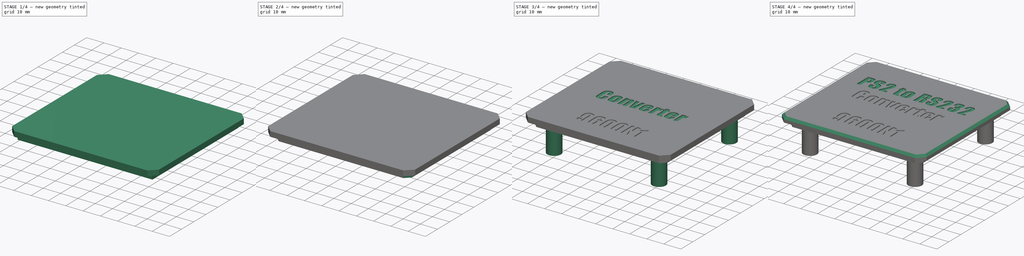
[diagram: build sequence overview — one tinted view per stage of 4, left to right]
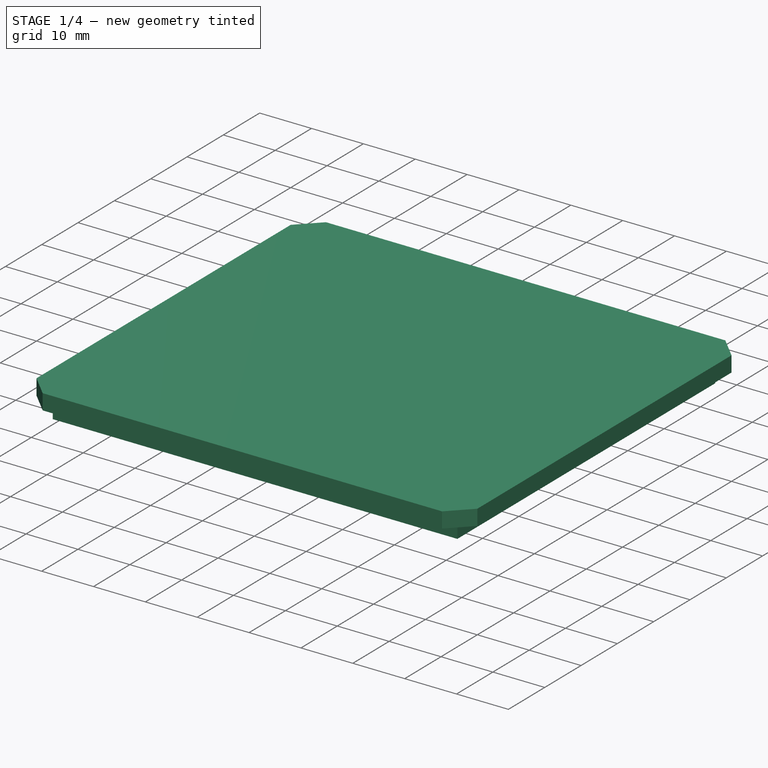
[diagram: stage 1 of 4 — iso view after this stage's code; geometry added in this stage tinted green]
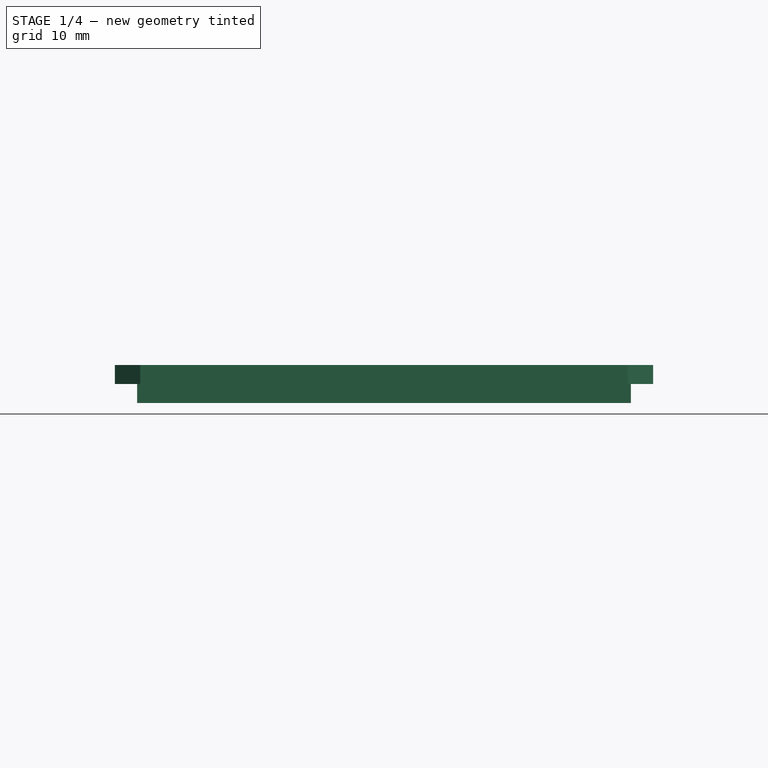
[diagram: stage 1 of 4 — front view after this stage's code; geometry added in this stage tinted green]
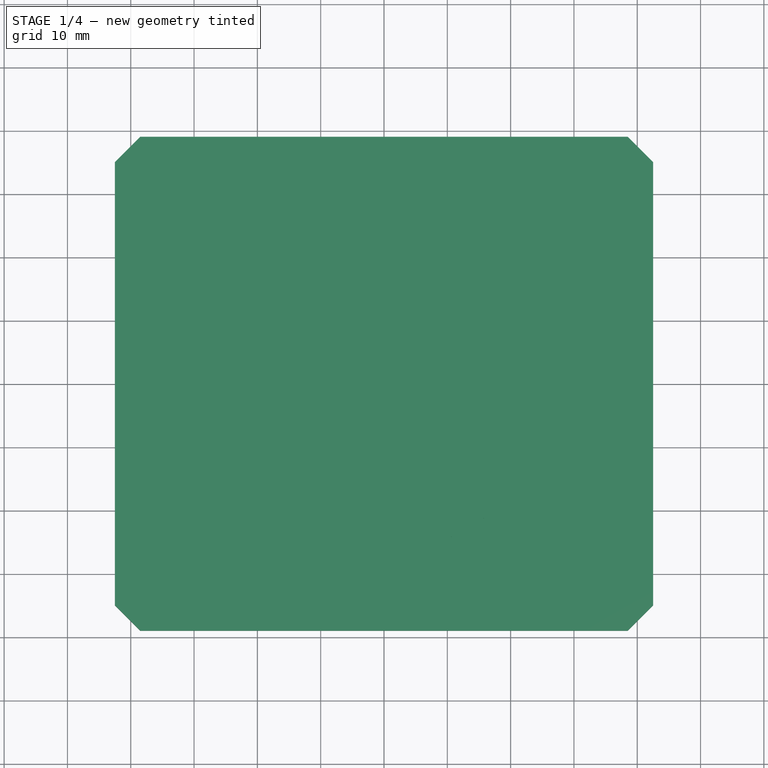
[diagram: stage 1 of 4 — top view after this stage's code; geometry added in this stage tinted green]
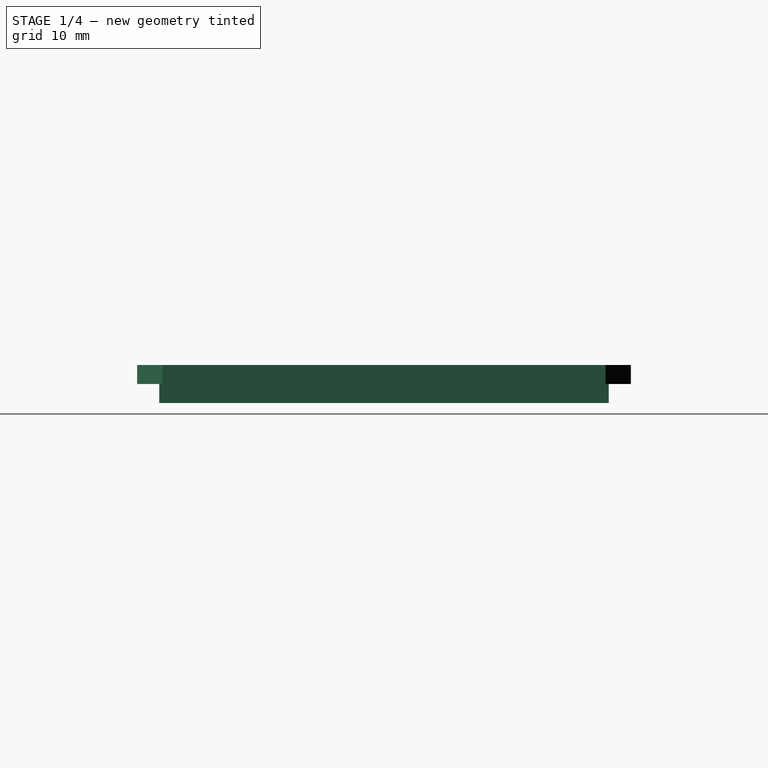
[diagram: stage 1 of 4 — right view after this stage's code; geometry added in this stage tinted green]
FCSTD DOCUMENT  (FreeCAD 0.17R13528 (Git))
Label: PS2 to RS232 lid
License: All rights reserved
LicenseURL: http://en.wikipedia.org/wiki/All_rights_reserved
objects: Sketcher::SketchObject×4, PartDesign::Pad×3, Part::Part2DObjectPython×3, Part::Extrusion×3, Part::Cut×3, PartDesign::Chamfer×2, PartDesign::Pocket×1, PartDesign::Body×1, Part::Chamfer×1
note: 25 computed .brp shape members not serialized (recipe doc carries the construction recipe); baked Part::Feature solids carry a one-line shape summary decoded from their .brp

FEATURE [Sketcher::SketchObject] Sketch
  MapMode = 5
  Support = -> [XY_Plane]
  sketch-geometry (8):
    g0: LineSegment StartX=38.5 StartY=39 StartZ=0 EndX=-38.5 EndY=39 EndZ=0
    g1: LineSegment StartX=-38.5 StartY=39 StartZ=0 EndX=-42.5 EndY=35 EndZ=0
    g2: LineSegment StartX=-42.5 StartY=35 StartZ=0 EndX=-42.5 EndY=-35 EndZ=0
    g3: LineSegment StartX=-42.5 StartY=-35 StartZ=0 EndX=-38.5 EndY=-39 EndZ=0
    g4: LineSegment StartX=-38.5 StartY=-39 StartZ=0 EndX=38.5 EndY=-39 EndZ=0
    g5: LineSegment StartX=38.5 StartY=-39 StartZ=0 EndX=42.5 EndY=-35 EndZ=0
    g6: LineSegment StartX=42.5 StartY=-35 StartZ=0 EndX=42.5 EndY=35 EndZ=0
    g7: LineSegment StartX=42.5 StartY=35 StartZ=0 EndX=38.5 EndY=39 EndZ=0
  constraints (23):
    c: Coincident(g0,g1)
    c: Coincident(g1,g2)
    c: Coincident(g2,g3)
    c: Coincident(g3,g4)
    c: Coincident(g4,g5)
    c: Coincident(g5,g6)
    c: Coincident(g6,g7)
    c: Coincident(g7,g0)
    c: Horizontal(g0)
    c: Horizontal(g4)
    c: Vertical(g6)
    c: Vertical(g2)
    c: Parallel(g3,g7)
    c: Parallel(g1,g5)
    c: Angle(g2,g1) = 2.35619
    c: Equal(g1,g3)
    c: Equal(g3,g5)
    c: Equal(g5,g7)
    c: DistanceX(g1,g0) = 4
    c: Symmetric(g2,g5,g-2)
    c: Symmetric(g0,g3,g-1)
    c: DistanceX(g1,g6) = 85
    c: DistanceY(g3,g0) = 78
FEATURE [PartDesign::Pad] Pad
  Length = 3
  Length2 = 100
  Profile = -> Sketch
  Type = 0
FEATURE [Sketcher::SketchObject] Sketch001
  ExternalGeometry = -> [Pad]
  MapMode = 5
  Placement = pos=(0,0,0) rot=(1,0,0;3.14159rad)
  Support = -> [Pad]
  sketch-geometry (4):
    g0: LineSegment StartX=-39 StartY=35.5 StartZ=0 EndX=39 EndY=35.5 EndZ=0
    g1: LineSegment StartX=39 StartY=35.5 StartZ=0 EndX=39 EndY=-35.5 EndZ=0
    g2: LineSegment StartX=39 StartY=-35.5 StartZ=0 EndX=-39 EndY=-35.5 EndZ=0
    g3: LineSegment StartX=-39 StartY=-35.5 StartZ=0 EndX=-39 EndY=35.5 EndZ=0
  constraints (12):
    c: Coincident(g0,g1)
    c: Coincident(g1,g2)
    c: Coincident(g2,g3)
    c: Coincident(g3,g0)
    c: Horizontal(g0)
    c: Horizontal(g2)
    c: Vertical(g1)
    c: Vertical(g3)
    c: Symmetric(g0,g0,g-2)
    c: Symmetric(g2,g0,g-1)
    c: DistanceY(g0,g-3) = 3.5
    c: DistanceX(g-4,g0) = 3.5
FEATURE [PartDesign::Pad] Pad001
  BaseFeature = -> Pad
  Length = 3
  Length2 = 100
  Profile = -> Sketch001
  Type = 0
FEATURE [PartDesign::Body] Body
  Group = -> [Sketch,Pad,Sketch001,Pad001,Chamfer,Sketch002,Pocket,Chamfer001,Sketch003,Pad002]
  Origin = -> Origin
  Tip = -> Pad002
FEATURE [Part::Part2DObjectPython] ShapeString  # Draft 2D object (typed FeaturePython)
  FontFile = <userpath>/USERROOT/Fonts/impact.ttf
  Placement = pos=(-32,12,3) rot=(0,0,1;0rad)
  Size = 10
  String = PS2 to RS232
  Tracking = 0
FEATURE [Part::Part2DObjectPython] ShapeString001  # Draft 2D object (typed FeaturePython)
  FontFile = <userpath>/USERROOT/Fonts/impact.ttf
  Placement = pos=(-26,-2,3) rot=(0,0,1;0rad)
  Size = 10
  String = Converter
  Tracking = 0
FEATURE [Part::Part2DObjectPython] ShapeString002  # Draft 2D object (typed FeaturePython)
  FontFile = <userpath>/USERROOT/Fonts/impact.ttf
  Placement = pos=(-19,-28,3) rot=(0,0,1;0rad)
  Size = 10
  String = 9600N1
  Tracking = 0
FEATURE [Part::Extrusion] Extrude  label="Baud text"
  Base = -> ShapeString002
  Dir = (0,0,1)
  DirMode = 2
  FaceMakerClass = Part::FaceMakerBullseye
  LengthFwd = 0.6
  LengthRev = 0
  Reversed = true
  Solid = false
  Symmetric = false
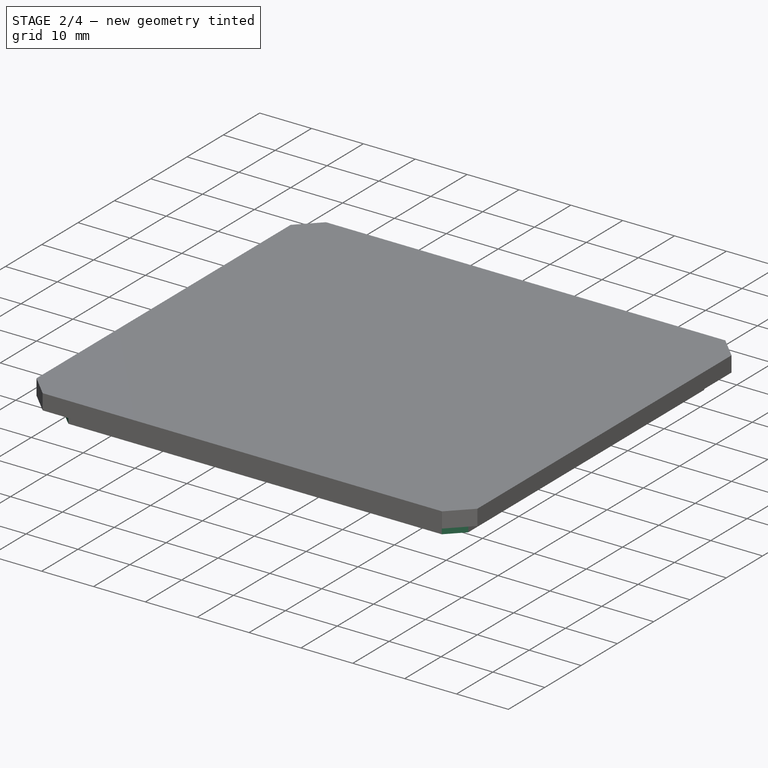
[diagram: stage 2 of 4 — iso view after this stage's code; geometry added in this stage tinted green]
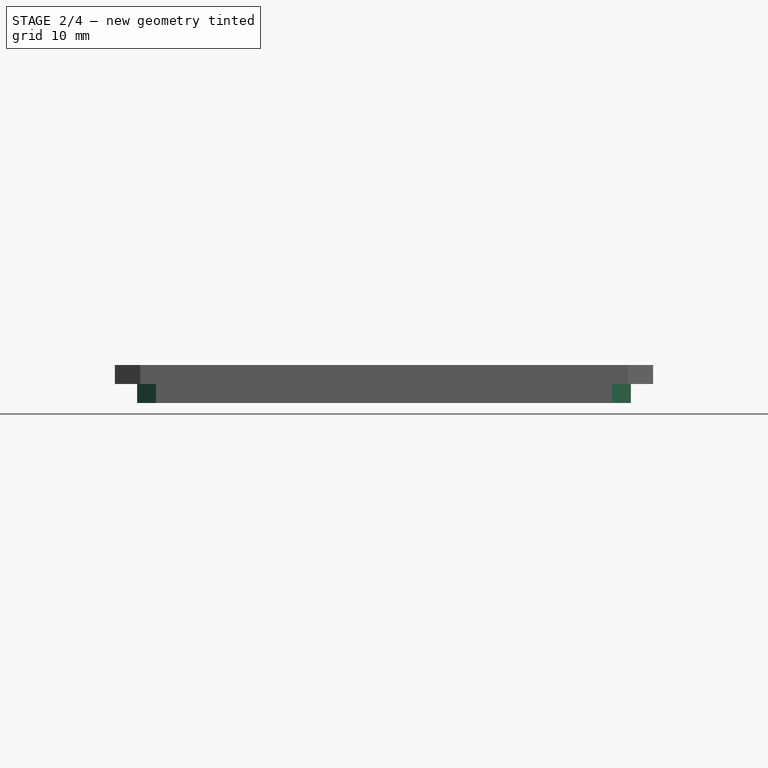
[diagram: stage 2 of 4 — front view after this stage's code; geometry added in this stage tinted green]
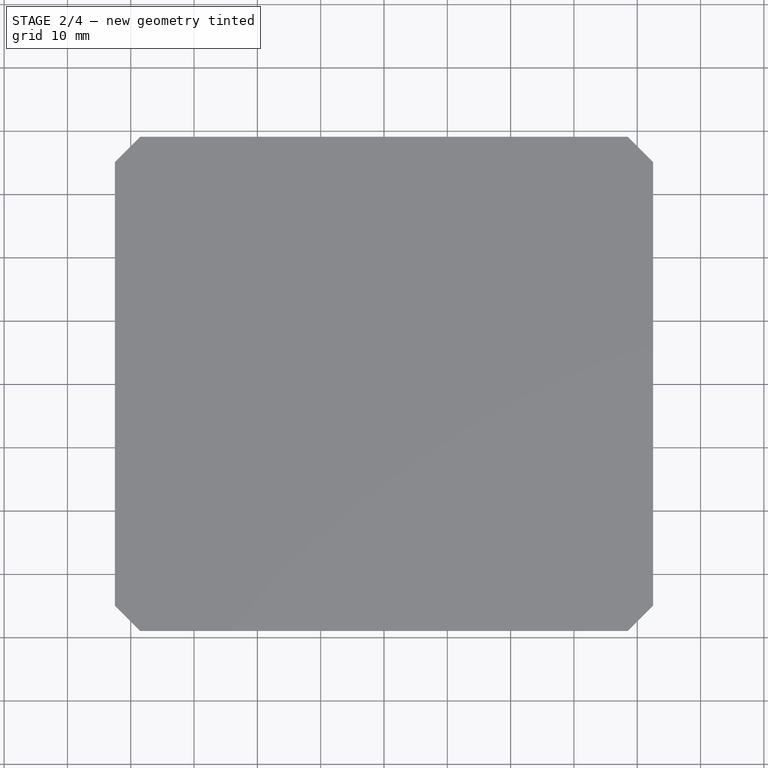
[diagram: stage 2 of 4 — top view after this stage's code; geometry added in this stage tinted green]
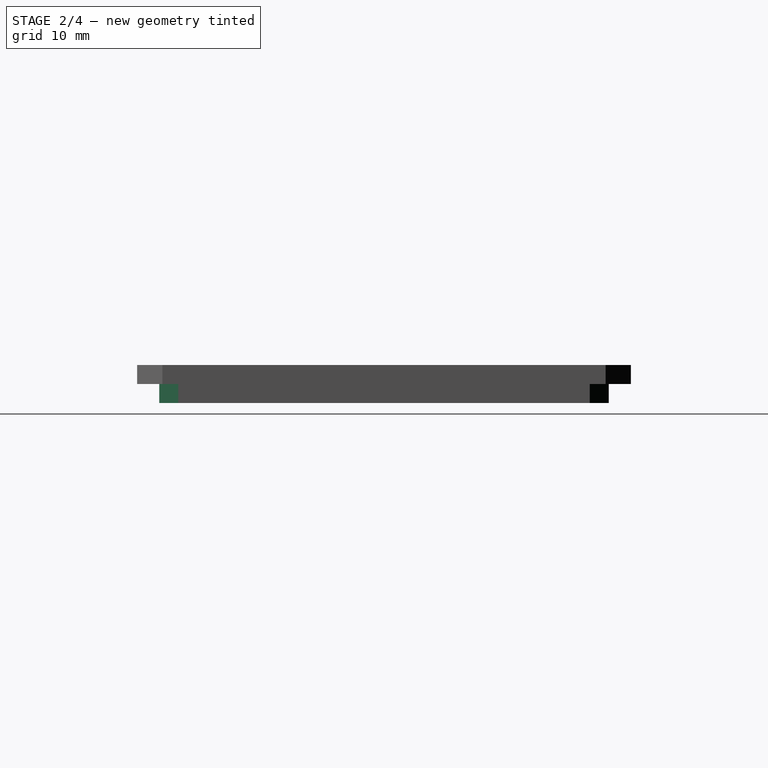
[diagram: stage 2 of 4 — right view after this stage's code; geometry added in this stage tinted green]
FEATURE [PartDesign::Chamfer] Chamfer
  Base = -> Pad001 [Edge32,Edge34,Edge29,Edge30]
  BaseFeature = -> Pad001
  Size = 3
FEATURE [Sketcher::SketchObject] Sketch002
  ExternalGeometry = -> [Chamfer]
  MapMode = 5
  Placement = pos=(0,0,-3) rot=(1,0,0;3.14159rad)
  Support = -> [Chamfer]
  sketch-geometry (4):
    g0: LineSegment StartX=-37 StartY=33.5 StartZ=0 EndX=37 EndY=33.5 EndZ=0
    g1: LineSegment StartX=37 StartY=33.5 StartZ=0 EndX=37 EndY=-33.5 EndZ=0
    g2: LineSegment StartX=37 StartY=-33.5 StartZ=0 EndX=-37 EndY=-33.5 EndZ=0
    g3: LineSegment StartX=-37 StartY=-33.5 StartZ=0 EndX=-37 EndY=33.5 EndZ=0
  constraints (12):
    c: Coincident(g0,g1)
    c: Coincident(g1,g2)
    c: Coincident(g2,g3)
    c: Coincident(g3,g0)
    c: Horizontal(g0)
    c: Horizontal(g2)
    c: Vertical(g1)
    c: Vertical(g3)
    c: Symmetric(g0,g0,g-2)
    c: Symmetric(g0,g2,g-1)
    c: DistanceY(g0,g-3) = 2
    c: DistanceX(g-3,g0) = 2
FEATURE [PartDesign::Pocket] Pocket
  BaseFeature = -> Chamfer
  Length = 3
  Length2 = 100
  Profile = -> Sketch002
  Type = 0
FEATURE [PartDesign::Chamfer] Chamfer001
  Base = -> Pocket [Edge56,Edge58,Edge53,Edge54]
  BaseFeature = -> Pocket
  Size = 2
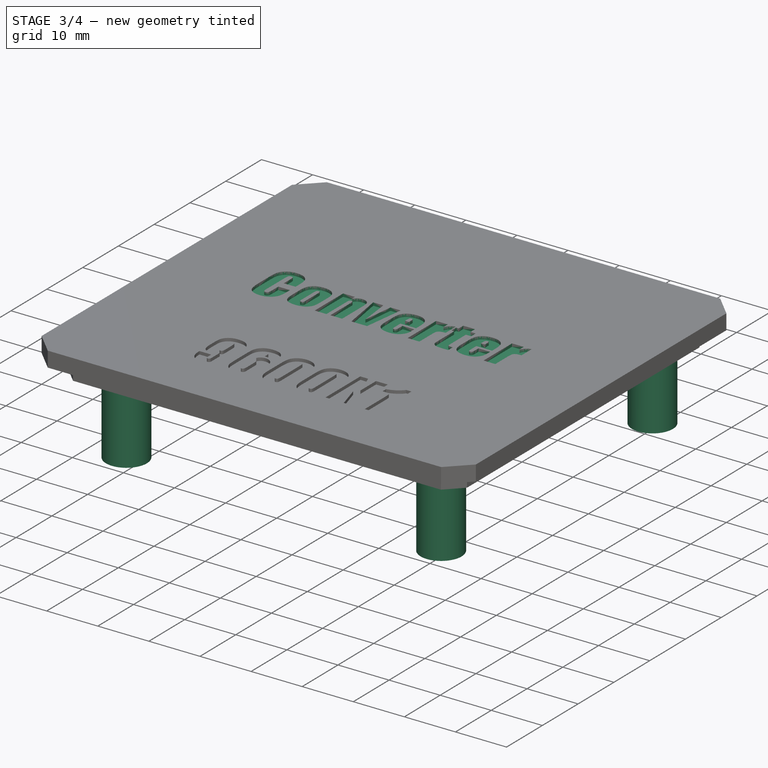
[diagram: stage 3 of 4 — iso view after this stage's code; geometry added in this stage tinted green]
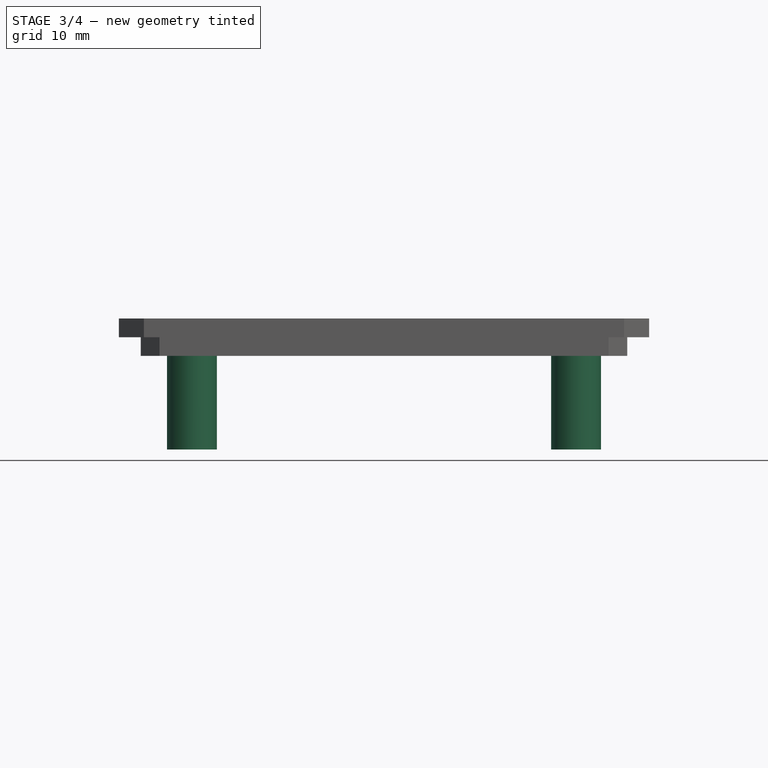
[diagram: stage 3 of 4 — front view after this stage's code; geometry added in this stage tinted green]
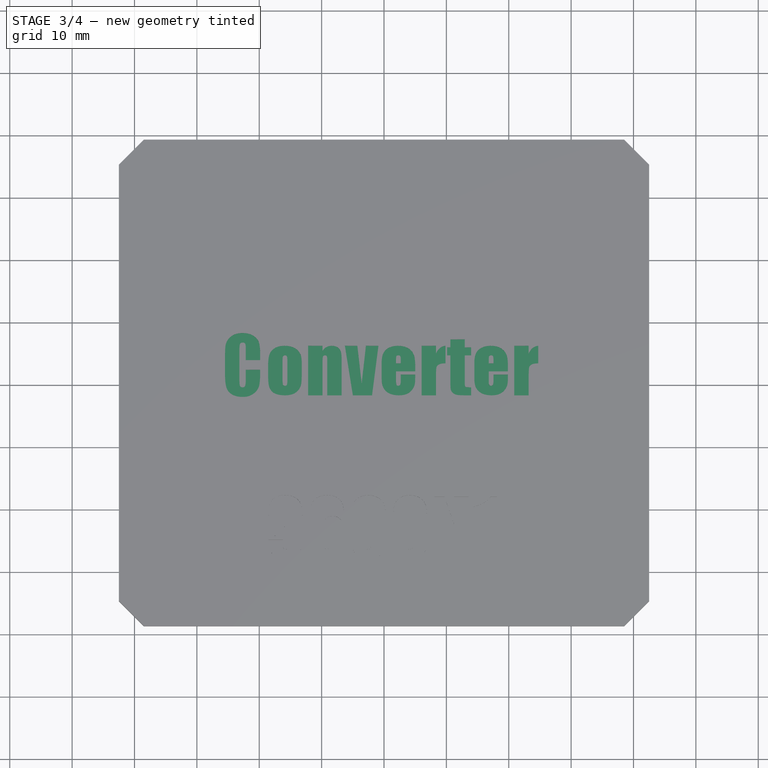
[diagram: stage 3 of 4 — top view after this stage's code; geometry added in this stage tinted green]
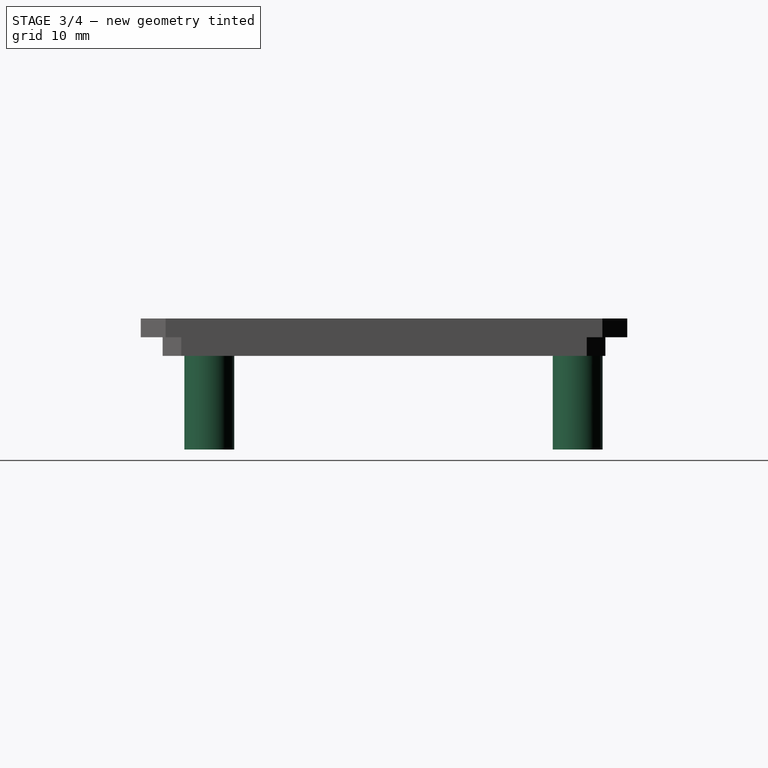
[diagram: stage 3 of 4 — right view after this stage's code; geometry added in this stage tinted green]
FEATURE [Sketcher::SketchObject] Sketch003
  ExternalGeometry = -> [Chamfer001]
  MapMode = 5
  Placement = pos=(0,0,0) rot=(1,0,0;3.14159rad)
  Support = -> [Chamfer001]
  sketch-geometry (13):
    g0: Circle CenterX=-30.7975 CenterY=28.01 CenterZ=0 NormalX=0 NormalY=0 NormalZ=1 AngleXU=0 Radius=1.5
    g1: Circle CenterX=30.7975 CenterY=28.01 CenterZ=0 NormalX=0 NormalY=0 NormalZ=1 AngleXU=0 Radius=1.5
    g2: Circle CenterX=-30.7975 CenterY=-31.045 CenterZ=0 NormalX=0 NormalY=0 NormalZ=1 AngleXU=0 Radius=1.5
    g3: Circle CenterX=30.7975 CenterY=-31.045 CenterZ=0 NormalX=0 NormalY=0 NormalZ=1 AngleXU=0 Radius=1.5
    g4: Circle CenterX=-30.7975 CenterY=28.01 CenterZ=0 NormalX=0 NormalY=0 NormalZ=1 AngleXU=0 Radius=4
    g5: Circle CenterX=30.7975 CenterY=28.01 CenterZ=0 NormalX=0 NormalY=0 NormalZ=1 AngleXU=0 Radius=4
    g6: Circle CenterX=-30.7975 CenterY=-31.045 CenterZ=0 NormalX=0 NormalY=0 NormalZ=1 AngleXU=0 Radius=4
    g7: Circle CenterX=30.7975 CenterY=-31.045 CenterZ=0 NormalX=0 NormalY=0 NormalZ=1 AngleXU=0 Radius=4
    g8: LineSegment [constr] StartX=-29.2975 StartY=28.01 StartZ=0 EndX=-26.7975 EndY=28.01 EndZ=0
    g9: LineSegment [constr] StartX=-30.7975 StartY=28.01 StartZ=0 EndX=30.7975 EndY=28.01 EndZ=0
    g10: LineSegment [constr] StartX=30.7975 StartY=28.01 StartZ=0 EndX=30.7975 EndY=-31.045 EndZ=0
    g11: LineSegment [constr] StartX=30.7975 StartY=-31.045 StartZ=0 EndX=-30.7975 EndY=-31.045 EndZ=0
    g12: LineSegment [constr] StartX=-30.7975 StartY=-31.045 StartZ=0 EndX=-30.7975 EndY=28.01 EndZ=0
  constraints (31):
    c: Radius(g2) = 1.5
    c: Equal(g2,g3)
    c: Equal(g2,g1)
    c: Equal(g2,g0)
    c: Coincident(g7,g3)
    c: Coincident(g2,g6)
    c: Coincident(g0,g4)
    c: Coincident(g1,g5)
    c: Equal(g4,g5)
    c: Equal(g5,g7)
    c: Equal(g7,g6)
    c: Perpendicular(g8,g0) = 1.5708
    c: Horizontal(g8)
    c: Perpendicular(g8,g4) = 1.5708
    c: Distance(g8) = 2.5
    c: Coincident(g9,g10)
    c: Coincident(g10,g11)
    c: Coincident(g11,g12)
    c: Coincident(g12,g9)
    c: Horizontal(g9)
    c: Horizontal(g11)
    c: Vertical(g10)
    c: Vertical(g12)
    c: Coincident(g10,g3)
    c: Coincident(g2,g11)
    c: Coincident(g9,g0)
    c: Coincident(g1,g9)
    c: Symmetric(g0,g1,g-2)
    c: Distance(g12) = 59.055
    c: Distance(g9) = 61.595
    c: DistanceY(g0,g-3) = 10.99
FEATURE [PartDesign::Pad] Pad002  label="Finished lid"
  BaseFeature = -> Chamfer001
  Length = 18
  Length2 = 100
  Profile = -> Sketch003
  Type = 0
FEATURE [Part::Extrusion] Extrude001  label="Function Text"
  Base = -> ShapeString001
  Dir = (0,0,1)
  DirMode = 2
  FaceMakerClass = Part::FaceMakerBullseye
  LengthFwd = 0.6
  LengthRev = 0
  Reversed = true
  Solid = false
  Symmetric = false
FEATURE [Part::Cut] Cut
  Base = -> Pad002
  Tool = -> Extrude
FEATURE [Part::Cut] Cut001
  Base = -> Cut
  Tool = -> Extrude001
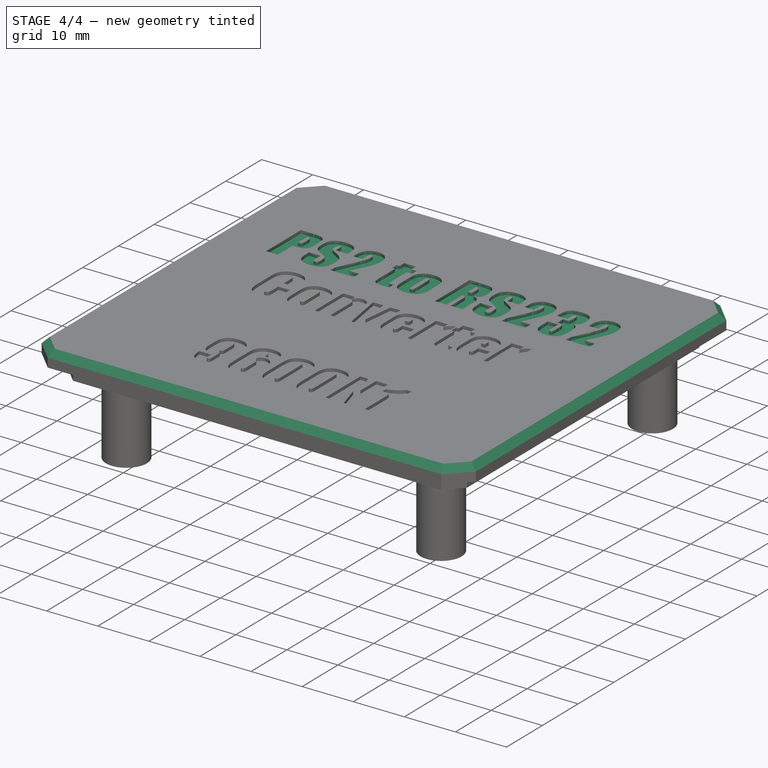
[diagram: stage 4 of 4 — iso view after this stage's code; geometry added in this stage tinted green]
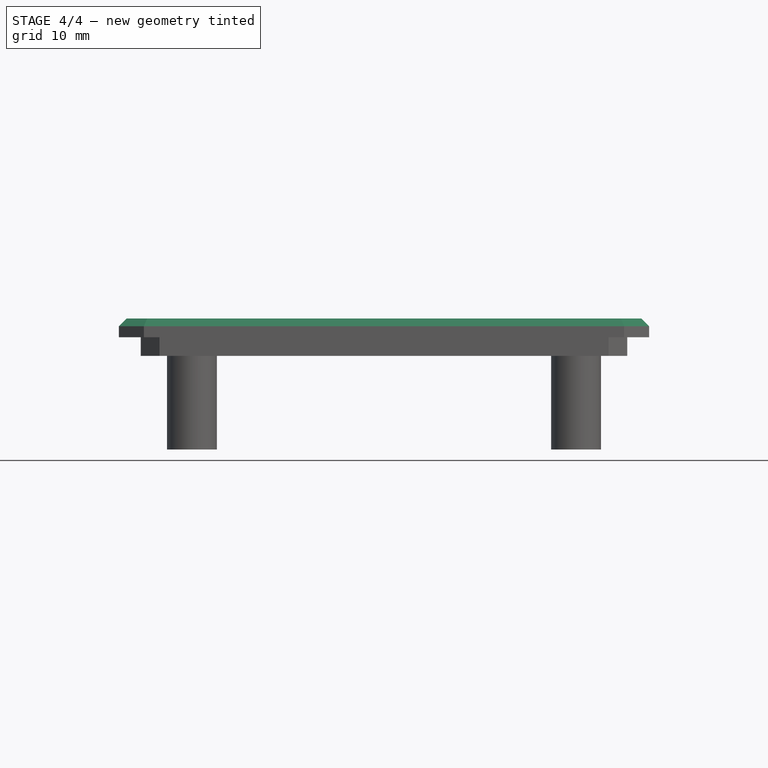
[diagram: stage 4 of 4 — front view after this stage's code; geometry added in this stage tinted green]
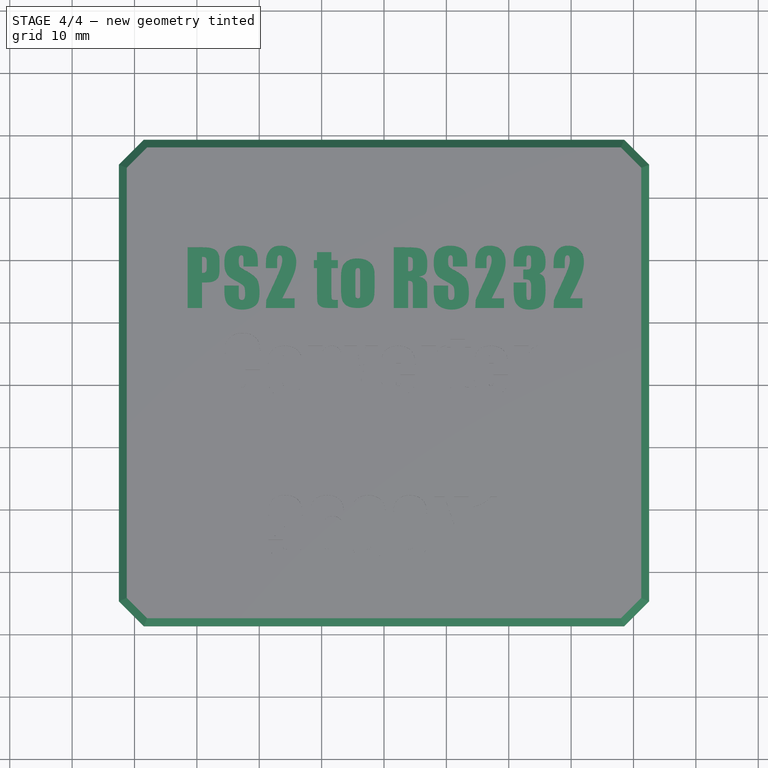
[diagram: stage 4 of 4 — top view after this stage's code; geometry added in this stage tinted green]
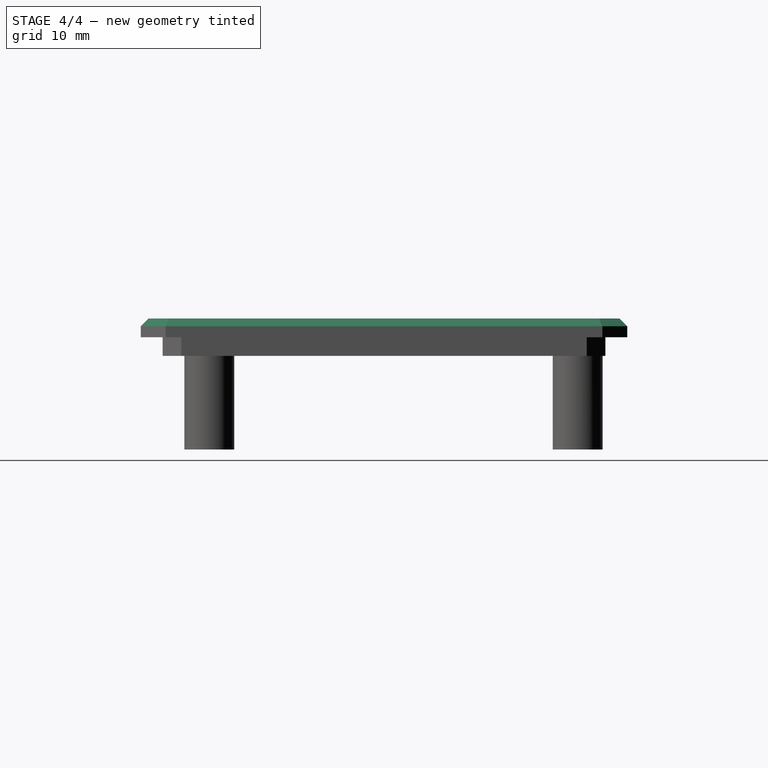
[diagram: stage 4 of 4 — right view after this stage's code; geometry added in this stage tinted green]
FEATURE [Part::Extrusion] Extrude002  label="IO Text"
  Base = -> ShapeString
  Dir = (0,0,1)
  DirMode = 2
  FaceMakerClass = Part::FaceMakerBullseye
  LengthFwd = 0.6
  LengthRev = 0
  Reversed = true
  Solid = false
  Symmetric = false
FEATURE [Part::Cut] Cut002  label="Finished Labelled Lid"
  Base = -> Cut001
  Tool = -> Extrude002
FEATURE [Part::Chamfer] Chamfer002
  Base = -> Cut002
  Edges = 8 edges r=1.25: [Edge81,Edge83,Edge85,Edge87,Edge89,Edge91,Edge93,Edge94]
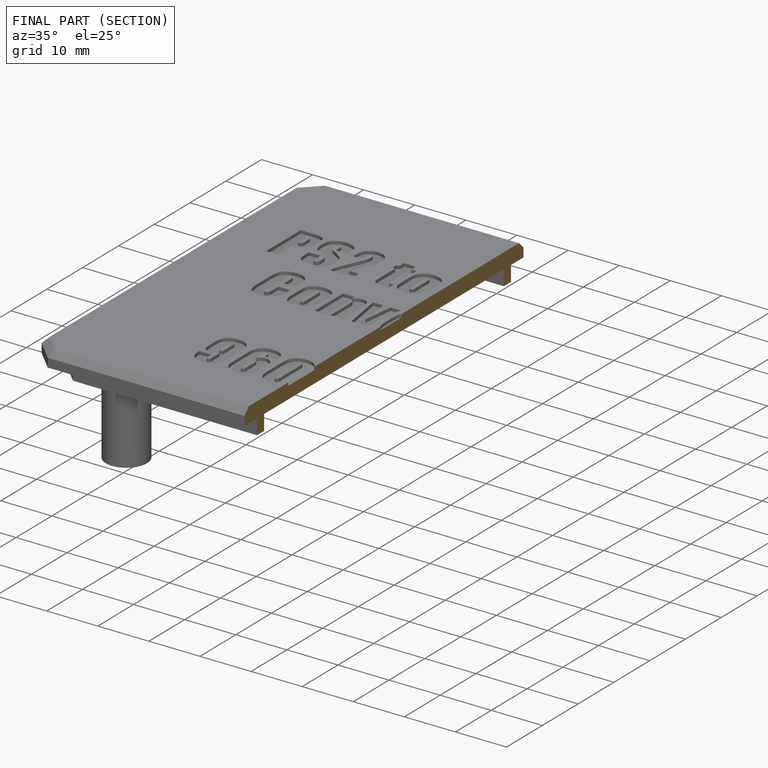
[diagram: finished part — half-section view (interior)]
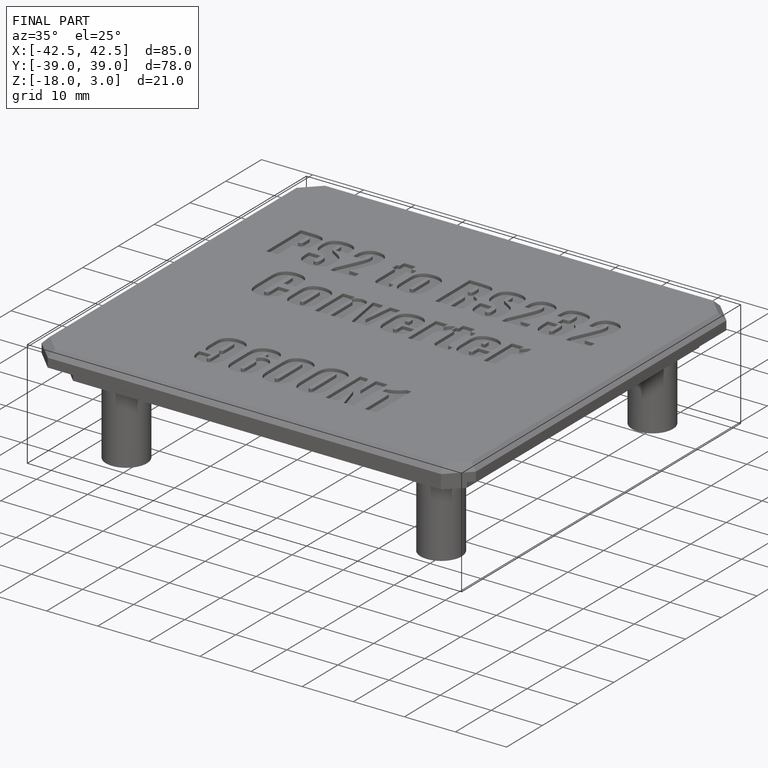
[diagram: finished part — iso view with bounding-box wireframe]
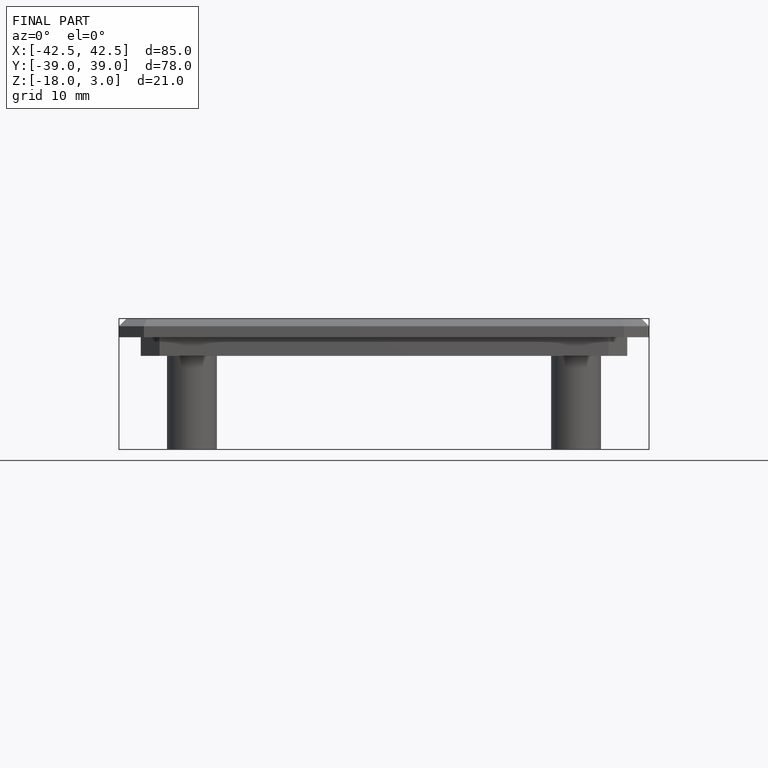
[diagram: finished part — front view with bounding-box wireframe]
